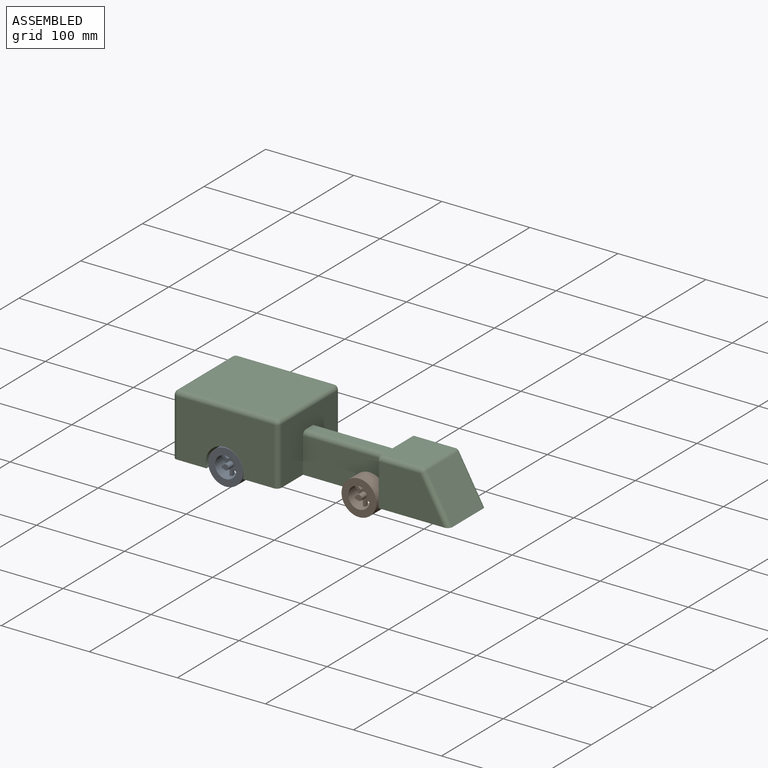
[diagram: assembled view]
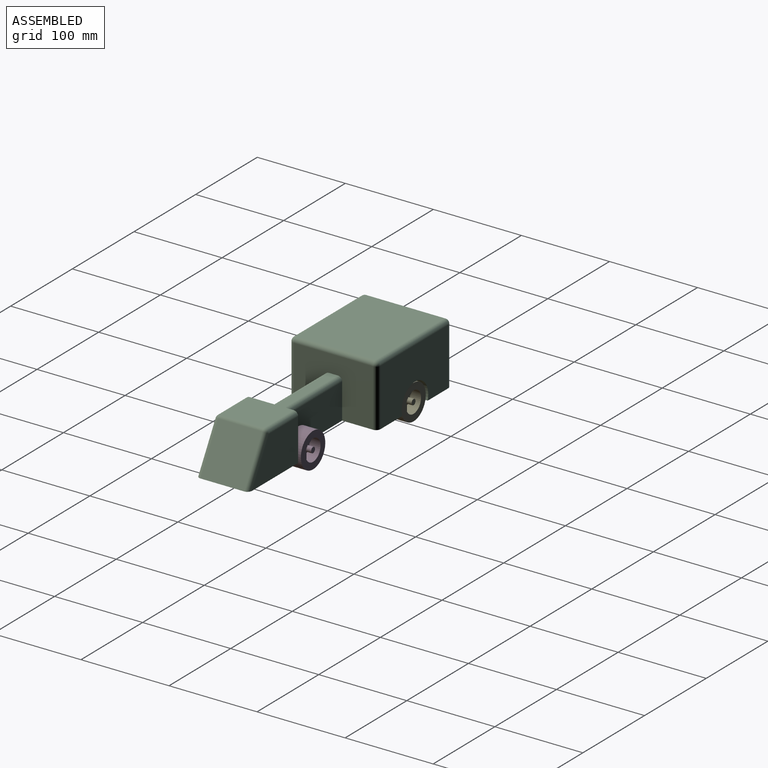
[diagram: assembled view, second angle]
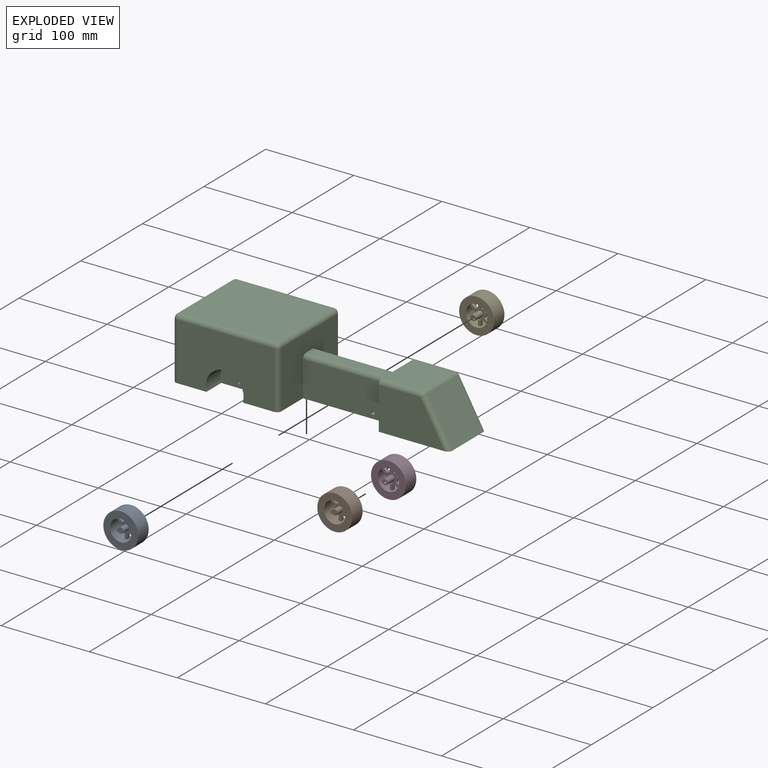
[diagram: exploded view]
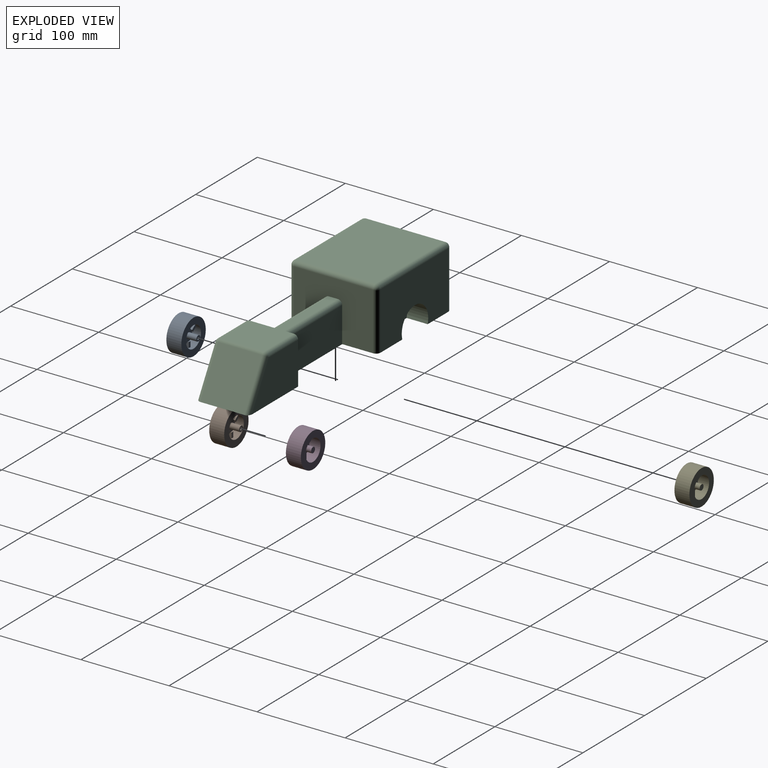
[diagram: exploded view, second angle]
ASSEMBLY  parts=5 mates=4
PART A: 42 faces, bbox 39.6x22.4x39.6 mm
  f0: cylinder r=12.1mm len=24.2mm, axis (0,1,0), area 1225mm2, adj f2,f3,f4,f5,f6,f7,f8,f9
  f1: cylinder r=19.8mm len=39.6mm, axis (0,1,0), area 2114.9mm2, adj f2,f3
  f2: plane 39.6x39.6mm, normal (0,-1,0), area 771.7mm2, adj f0,f1
  f3: plane 39.6x39.6mm, normal (0,1,0), area 771.7mm2, adj f0,f1
  f4: plane 6.21x2.8mm, normal (0,1,0), area 17mm2, adj f0,f15,f16,f17
  f5: plane 24.22x21.29mm, normal (0,-1,0), area 186.2mm2, adj f0,f15,f16,f18,f19,f20,f22,f23
  f6: plane 6.21x2.8mm, normal (0,1,0), area 17mm2, adj f0,f19,f20,f21
  f7: plane 7.08x5.81mm, normal (0,1,0), area 17.6mm2, adj f0,f23,f24,f25
  f8: plane 6.48x6.25mm, normal (0,1,0), area 17.6mm2, adj f0,f28,f29,f30
  f9: plane 6.48x5.97mm, normal (0,1,0), area 17mm2, adj f0,f32,f33,f34
  f10: plane 6.85x5.92mm, normal (0,1,0), area 17.5mm2, adj f0,f37,f38,f39
  f11: cylinder r=3.17mm len=11.2mm, axis (0,1,0), area 223.1mm2, adj f13,f26
  f12: cylinder r=1.57mm len=13.9mm, axis (0,1,0), area 137.1mm2, adj f13,f14
  f13: plane 6.34x6.34mm, normal (0,1,0), area 23.8mm2, adj f11,f12
  f14: plane 3.14x3.14mm, normal (0,1,0), area 7.7mm2, adj f12
  f15: plane 6.11x4mm, normal (1,0,0), area 24.4mm2, adj f0,f4,f5,f17,f27
  f16: plane 6.12x4mm, normal (-1,0,0), area 24.5mm2, adj f0,f4,f5,f17,f18
  f17: cylinder r=6.07mm len=2.8mm, axis (0,-1,0), area 3.7mm2, adj f4,f15,f16,f26
  f18: cylinder r=6.07mm len=2.75mm, axis (0,-1,0), area 8.6mm2, adj f5,f16,f26,f34
  f19: plane 6.12x4mm, normal (-1,0,0), area 24.5mm2, adj f0,f5,f6,f21,f35
  f20: plane 6.11x4mm, normal (1,0,0), area 24.4mm2, adj f0,f5,f6,f21,f22
  f21: cylinder r=6.07mm len=2.8mm, axis (0,-1,0), area 3.7mm2, adj f6,f19,f20,f26
  f22: cylinder r=6.07mm len=2.7mm, axis (0,-1,0), area 6.8mm2, adj f5,f20,f26,f38
  f23: plane 5.22x4mm, normal (-0.59,0,0.8), area 25.4mm2, adj f0,f5,f7,f24,f26,f27
  f24: cylinder r=5.88mm len=2.07mm, axis (0,-1,0), area 3.7mm2, adj f7,f23,f25,f26
  f25: plane 5x4mm, normal (0.59,0,-0.8), area 24.4mm2, adj f0,f5,f7,f24,f26,f36
  f26: plane 12.14x12.14mm, normal (0,1,0), area 82.6mm2, adj f11,f17,f18,f21,f22,f23,f24,f25
  f27: cylinder r=6.07mm len=2.7mm, axis (0,-1,0), area 4.9mm2, adj f5,f15,f23,f26
  f28: cylinder r=5.88mm len=2.55mm, axis (0,-1,0), area 3.7mm2, adj f8,f26,f29,f30
  f29: plane 5.22x4mm, normal (-0.59,0,0.8), area 25.4mm2, adj f0,f5,f8,f26,f28,f31
  f30: plane 5x4mm, normal (0.59,0,-0.8), area 24.4mm2, adj f0,f5,f8,f26,f28,f35
  f31: cylinder r=6.07mm len=3.38mm, axis (0,-1,0), area 9.3mm2, adj f5,f26,f29,f32
  f32: plane 4.96x4mm, normal (-0.59,0,-0.8), area 24.7mm2, adj f0,f5,f9,f31,f33
  f33: cylinder r=6.07mm len=2.36mm, axis (0,-1,0), area 3.7mm2, adj f9,f26,f32,f34
  f34: plane 4.88x4mm, normal (0.59,0,0.8), area 24.3mm2, adj f0,f5,f9,f18,f33
  f35: cylinder r=6.07mm len=3.19mm, axis (0,-1,0), area 10.3mm2, adj f5,f19,f26,f30
  f36: cylinder r=6.07mm len=6.03mm, axis (0,-1,0), area 17.1mm2, adj f5,f25,f26,f39
  f37: cylinder r=5.88mm len=2.14mm, axis (0,-1,0), area 3.7mm2, adj f10,f26,f38,f39
  f38: plane 5.12x4mm, normal (-0.59,0,-0.8), area 24.9mm2, adj f0,f5,f10,f22,f26,f37
  f39: plane 5.04x4mm, normal (0.59,0,0.8), area 24.5mm2, adj f0,f5,f10,f26,f36,f37
  f40: plane 6.32x6.32mm, normal (0,-1,0), area 31.4mm2, adj f41
  f41: cylinder r=3.16mm len=8.5mm, axis (0,1,0), area 168.9mm2, adj f5,f40
PART B: same geometry as A
PART C: 46 faces, bbox 300x100x72.5 mm
  f0: plane 110x65mm, normal (0,-1,0), area 6169.1mm2, adj f2,f29,f33,f34,f44
  f1: cylinder r=2mm len=52mm, axis (0,1,0), area 653.5mm2, adj f43,f45
  f2: plane 300x100mm, normal (0,0,-1), area 16785.2mm2, adj f0,f3,f5,f7,f8,f9,f10,f11
  f3: plane 53x40mm, normal (-1,0,0), area 1225.4mm2, adj f2,f4,f11,f13,f14,f15,f21,f27
  f4: plane 50x46.81mm, normal (0,0,1), area 2340.6mm2, adj f3,f13,f21,f23,f24
  f5: plane 50.48x50mm, normal (0.87,0,0.5), area 2907.1mm2, adj f2,f20,f23,f26
  f6: plane 110x90mm, normal (0,0,1), area 9900mm2, adj f31,f34,f37,f39,f41
  f7: plane 100x40mm, normal (0,1,0), area 3987.4mm2, adj f2,f12,f13,f19,f28
  f8: plane 110x65mm, normal (0,1,0), area 6171.1mm2, adj f2,f32,f37,f38,f42
  f9: plane 90x65mm, normal (-1,0,0), area 5771.5mm2, adj f2,f17,f29,f31,f32
  f10: plane 65x55mm, normal (1,0,0), area 2685.7mm2, adj f2,f11,f12,f14,f27,f28,f33,f39
  f11: plane 100x40mm, normal (0,-1,0), area 3987.4mm2, adj f2,f3,f10,f19,f27
  f12: plane 65x35mm, normal (1,0,0), area 2275mm2, adj f2,f7,f10,f38,f41
  f13: plane 53x20mm, normal (-1,0,0), area 1054.6mm2, adj f2,f3,f4,f7,f16,f24
  f14: plane 100x10mm, normal (0,0,1), area 1000mm2, adj f3,f10,f27,f28
  f15: plane 74.24x48mm, normal (0,-1,0), area 2905.3mm2, adj f2,f3,f20,f21
  f16: plane 74.24x48mm, normal (0,1,0), area 2905.3mm2, adj f2,f13,f24,f26
  f17: cylinder r=5mm len=60mm, axis (-1,0,0), area 1885mm2, adj f9,f18
  f18: plane 10x10mm, normal (-1,0,0), area 78.5mm2, adj f17
  f19: cylinder r=2mm len=20mm, axis (0,1,0), area 251.3mm2, adj f7,f11
  f20: cylinder r=5mm len=52.96mm, axis (0.5,0,-0.87), area 448.5mm2, adj f2,f5,f15,f22
  f21: cylinder r=5mm len=46.81mm, axis (-1,0,0), area 367.7mm2, adj f3,f4,f15,f22
  f22: sphere r=5mm, area 26.3mm2, adj f20,f21,f23
  f23: cylinder r=5mm len=50mm, axis (0,1,0), area 262.9mm2, adj f4,f5,f22,f25
  f24: cylinder r=5mm len=46.81mm, axis (1,0,0), area 367.7mm2, adj f4,f13,f16,f25
  f25: sphere r=5mm, area 26.3mm2, adj f23,f24,f26
  f26: cylinder r=5mm len=52.96mm, axis (-0.5,0,0.87), area 448.5mm2, adj f2,f5,f16,f25
  f27: cylinder r=5mm len=100mm, axis (1,0,0), area 785.4mm2, adj f3,f10,f11,f14
  f28: cylinder r=5mm len=100mm, axis (1,0,0), area 785.4mm2, adj f3,f7,f10,f14
  f29: cylinder r=5mm len=65mm, axis (0,0,-1), area 510.5mm2, adj f0,f2,f9,f30
  f30: sphere r=5mm, area 39.3mm2, adj f29,f31,f34
  f31: cylinder r=5mm len=90mm, axis (0,1,0), area 706.9mm2, adj f6,f9,f30,f35
  f32: cylinder r=5mm len=65mm, axis (0,0,1), area 510.5mm2, adj f2,f8,f9,f35
  f33: cylinder r=5mm len=65mm, axis (0,0,-1), area 510.5mm2, adj f0,f2,f10,f36
  f34: cylinder r=5mm len=110mm, axis (-1,0,0), area 863.9mm2, adj f0,f6,f30,f36
  f35: sphere r=5mm, area 39.3mm2, adj f31,f32,f37
  f36: sphere r=5mm, area 39.3mm2, adj f33,f34,f39
  f37: cylinder r=5mm len=110mm, axis (1,0,0), area 863.9mm2, adj f6,f8,f35,f40
  f38: cylinder r=5mm len=65mm, axis (0,0,-1), area 510.5mm2, adj f2,f8,f12,f40
  f39: cylinder r=5mm len=55mm, axis (0,-1,0), area 432mm2, adj f6,f10,f36,f41
  f40: sphere r=5mm, area 39.3mm2, adj f37,f38,f41
  f41: cylinder r=5mm len=35mm, axis (0,1,0), area 274.9mm2, adj f6,f12,f39,f40
  f42: cylinder r=21.48mm len=42.96mm, axis (0,1,0), area 1911.3mm2, adj f2,f8,f43
  f43: plane 42.96x27.48mm, normal (0,1,0), area 966.4mm2, adj f1,f2,f42
  f44: cylinder r=21.5mm len=43mm, axis (0,-1,0), area 1913.1mm2, adj f0,f2,f45
  f45: plane 43x27.5mm, normal (0,-1,0), area 968.3mm2, adj f1,f2,f44
PART D: 42 faces, bbox 39.6x22.4x39.6 mm
  f0: cylinder r=12.1mm len=24.2mm, axis (0,-1,0), area 1225mm2, adj f2,f3,f4,f5,f6,f7,f8,f9
  f1: cylinder r=19.8mm len=39.6mm, axis (0,-1,0), area 2114.9mm2, adj f2,f3
  f2: plane 39.6x39.6mm, normal (0,1,0), area 771.7mm2, adj f0,f1
  f3: plane 39.6x39.6mm, normal (0,-1,0), area 771.7mm2, adj f0,f1
  f4: plane 6.21x2.8mm, normal (0,-1,0), area 17mm2, adj f0,f15,f16,f17
  f5: plane 24.22x21.29mm, normal (0,1,0), area 186.3mm2, adj f0,f15,f16,f18,f19,f20,f22,f23
  f6: plane 6.21x2.8mm, normal (0,-1,0), area 17mm2, adj f0,f19,f20,f21
  f7: plane 7.08x5.81mm, normal (0,-1,0), area 17.6mm2, adj f0,f23,f24,f25
  f8: plane 6.48x6.25mm, normal (0,-1,0), area 17.6mm2, adj f0,f28,f29,f30
  f9: plane 6.48x5.97mm, normal (0,-1,0), area 17mm2, adj f0,f32,f33,f34
  f10: plane 6.85x5.92mm, normal (0,-1,0), area 17.5mm2, adj f0,f37,f38,f39
  f11: cylinder r=3.17mm len=11.2mm, axis (0,-1,0), area 223.1mm2, adj f13,f26
  f12: cylinder r=1.57mm len=13.9mm, axis (0,-1,0), area 137.1mm2, adj f13,f14
  f13: plane 6.34x6.34mm, normal (0,-1,0), area 23.8mm2, adj f11,f12
  f14: plane 3.14x3.14mm, normal (0,-1,0), area 7.7mm2, adj f12
  f15: plane 6.11x4mm, normal (1,0,0), area 24.4mm2, adj f0,f4,f5,f17,f27
  f16: plane 6.12x4mm, normal (-1,0,0), area 24.5mm2, adj f0,f4,f5,f17,f18
  f17: cylinder r=6.07mm len=2.8mm, axis (0,1,0), area 3.7mm2, adj f4,f15,f16,f26
  f18: cylinder r=6.07mm len=2.75mm, axis (0,1,0), area 8.6mm2, adj f5,f16,f26,f34
  f19: plane 6.12x4mm, normal (-1,0,0), area 24.5mm2, adj f0,f5,f6,f21,f35
  f20: plane 6.11x4mm, normal (1,0,0), area 24.4mm2, adj f0,f5,f6,f21,f22
  f21: cylinder r=6.07mm len=2.8mm, axis (0,1,0), area 3.7mm2, adj f6,f19,f20,f26
  f22: cylinder r=6.07mm len=2.7mm, axis (0,1,0), area 6.8mm2, adj f5,f20,f26,f38
  f23: plane 5.22x4mm, normal (-0.59,0,0.8), area 25.4mm2, adj f0,f5,f7,f24,f26,f27
  f24: cylinder r=5.88mm len=2.07mm, axis (0,1,0), area 3.7mm2, adj f7,f23,f25,f26
  f25: plane 5x4mm, normal (0.59,0,-0.8), area 24.4mm2, adj f0,f5,f7,f24,f26,f36
  f26: plane 12.14x12.14mm, normal (0,-1,0), area 82.6mm2, adj f11,f17,f18,f21,f22,f23,f24,f25
  f27: cylinder r=6.07mm len=2.7mm, axis (0,1,0), area 4.9mm2, adj f5,f15,f23,f26
  f28: cylinder r=5.88mm len=2.55mm, axis (0,1,0), area 3.7mm2, adj f8,f26,f29,f30
  f29: plane 5.22x4mm, normal (-0.59,0,0.8), area 25.4mm2, adj f0,f5,f8,f26,f28,f31
  f30: plane 5x4mm, normal (0.59,0,-0.8), area 24.4mm2, adj f0,f5,f8,f26,f28,f35
  f31: cylinder r=6.07mm len=3.38mm, axis (0,1,0), area 9.3mm2, adj f5,f26,f29,f32
  f32: plane 4.96x4mm, normal (-0.59,0,-0.8), area 24.7mm2, adj f0,f5,f9,f31,f33
  f33: cylinder r=6.07mm len=2.36mm, axis (0,1,0), area 3.7mm2, adj f9,f26,f32,f34
  f34: plane 4.88x4mm, normal (0.59,0,0.8), area 24.3mm2, adj f0,f5,f9,f18,f33
  f35: cylinder r=6.07mm len=3.19mm, axis (0,1,0), area 10.3mm2, adj f5,f19,f26,f30
  f36: cylinder r=6.07mm len=6.03mm, axis (0,1,0), area 17.1mm2, adj f5,f25,f26,f39
  f37: cylinder r=5.88mm len=2.14mm, axis (0,1,0), area 3.7mm2, adj f10,f26,f38,f39
  f38: plane 5.12x4mm, normal (-0.59,0,-0.8), area 24.9mm2, adj f0,f5,f10,f22,f26,f37
  f39: plane 5.04x4mm, normal (0.59,0,0.8), area 24.5mm2, adj f0,f5,f10,f26,f36,f37
  f40: plane 6.32x6.32mm, normal (0,1,0), area 31.4mm2, adj f41
  f41: cylinder r=3.16mm len=8.5mm, axis (0,-1,0), area 168.9mm2, adj f5,f40
PART E: same geometry as D
PLACE A t=(-84.05,-20.42,-1.16)mm
PLACE B t=(56.11,-4.42,-1.16)mm
PLACE C t=(-7.58,28.15,-13.01)mm
PLACE D t=(56.11,-23.62,-1.16)mm
PLACE E t=(-84.05,-7.62,-1.16)mm
MATE revolute E.f0 <-> C.f1  axis (0,-1,0) through (-98.55,36.28,-7.01)mm
MATE revolute D.f0 <-> C.f19  axis (0,-1,0) through (41.62,20.28,-7.01)mm
MATE revolute A.f0 <-> C.f1  axis (0,1,0) through (-98.55,-15.72,-7.01)mm
MATE revolute B.f0 <-> C.f19  axis (0,1,0) through (41.62,0.28,-7.01)mm
